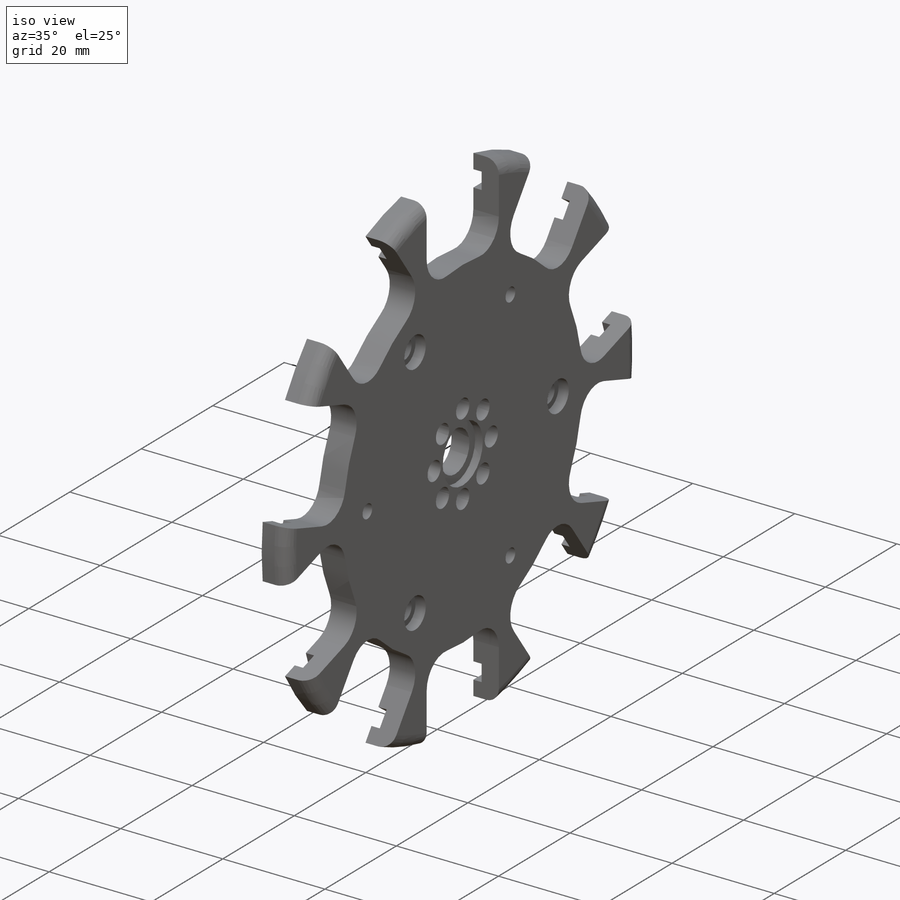
[diagram: iso view]
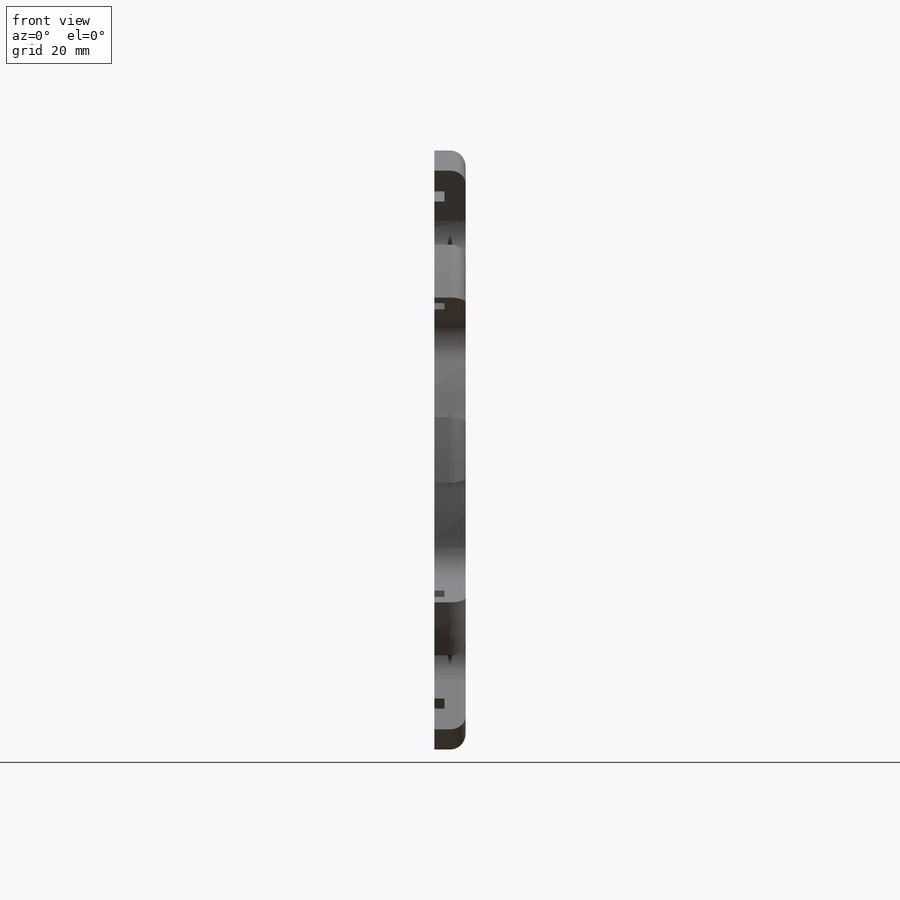
[diagram: front view]
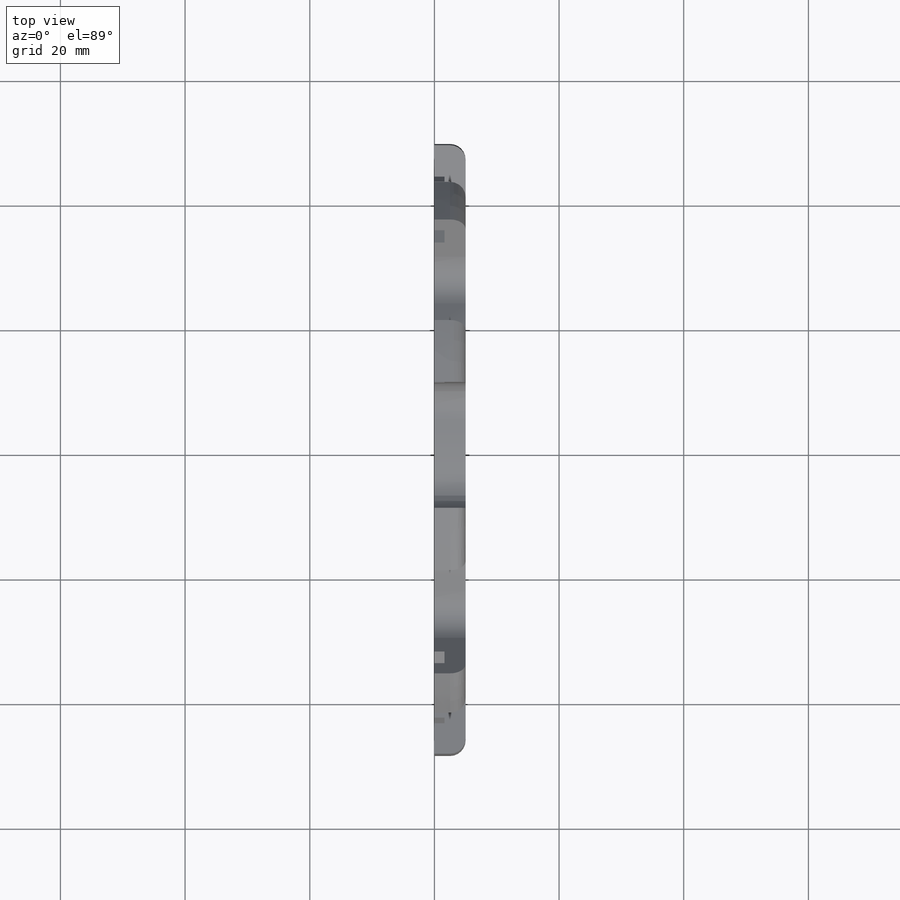
[diagram: top view]
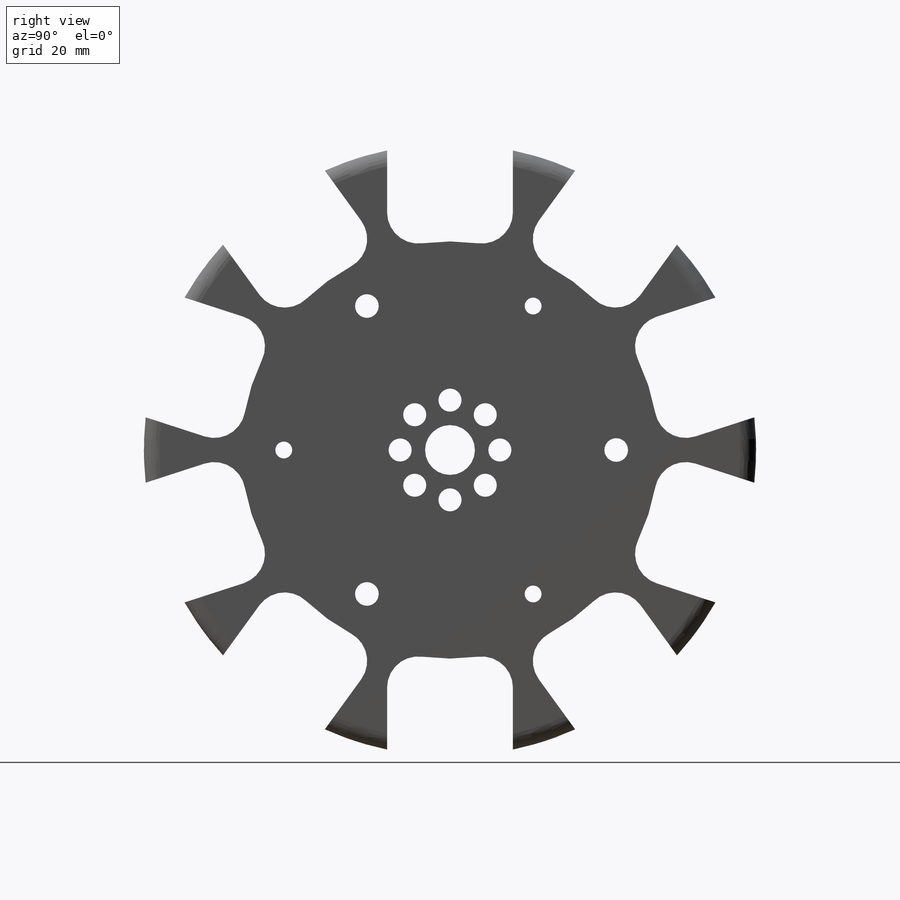
[diagram: right view]
SOLIDWORKS PART (.sldprt)
format: sldprt  version: not decoded by parser v0  size: 453,632 bytes
history: native  units: mm
features: sketch x4, cut_extrude x3, material x1, extrude x1, fillet x1 (+11 scaffold rows collapsed)
feature tree (21):
  scaffold x11  (default folders/planes/origin — collapsed)
  material  "Delrin 2700 NC010, Low Viscosity Acetal Copolymer (SS)"
  sketch  "Sketch1"  dims[D1=98.2218mm D2=66.929mm D3=8.0mm D5=3.7mm D7=5.0mm D11=2.7051mm D12=3.7973mm D4=8.0mm D6=10.0965mm D10=53.34mm D8=10.0 D9=8.0 D13=3.0]
  extrude  "Boss-Extrude1"  Depth=5mm
  fillet  "Fillet1"  Radius=2.5mm
  sketch  "Sketch2"  dims[D1=43.561mm D2=25.7302mm D3=1.6256mm D4=10.0]
  cut_extrude  "Cut-Extrude1"  Depth=1.6256mm
  sketch  "Sketch3"  dims[D1=5.9944mm D2=3.0]
  cut_extrude  "Cut-Extrude2"  Depth=2.0066mm
  sketch  "Sketch4"  dims[D1=11.2014mm]
  cut_extrude  "Cut-Extrude3"  Depth=1.4986mm
decode coverage: 9 of 9 modeling features carry decoded parameters
note: suppression state not decoded; provenance and decode notes live in map.json
